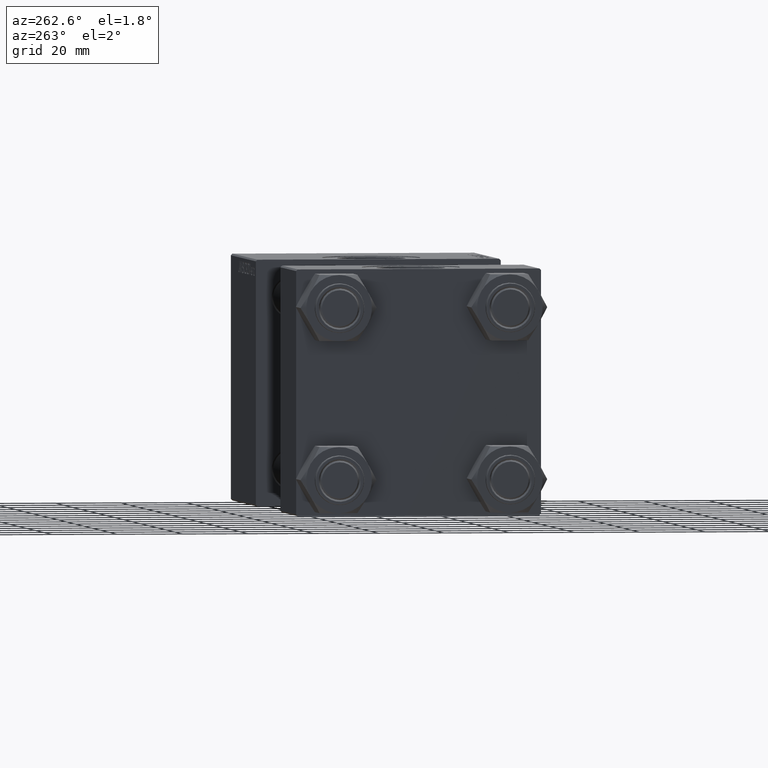
[diagram: clean part render]
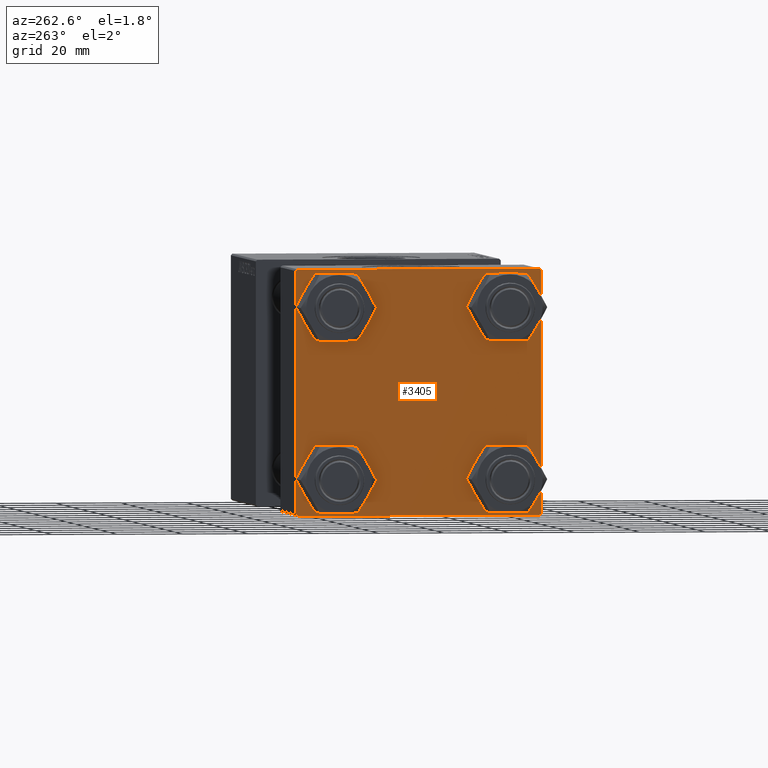
[diagram: same view with one face highlighted and labeled with its STEP entity id]
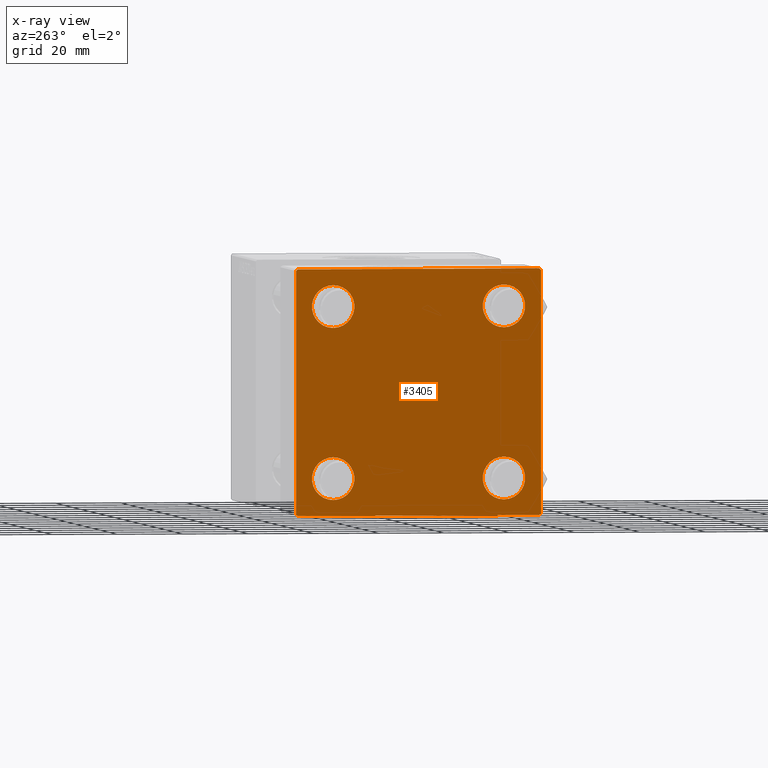
[diagram: x-ray of the same camera — body ghosted, the highlighted face saturated]
A machine part, auxiliary view. The second image highlights one B-rep face of the part: STEP entity #3405.
The next image is the same camera in x-ray: the body ghosted, the highlighted face saturated — about 0% of this face is hidden behind the body in this view.
In plain terms, the highlighted planar face has unit normal (-1, 0, 0).
Its self-contained STEP definition (entity closure, byte-faithful):
#1336 = DIRECTION ( 'NONE',  ( 1.000000000000000000, -0.000000000000000000, 0.000000000000000000 ) ) ;
#1498 = EDGE_CURVE ( 'NONE', #6994, #21652, #19226, .T. ) ;
#1611 = CARTESIAN_POINT ( 'NONE',  ( 0.000000000000000000, -26.14999999999999147, -19.64999999999999503 ) ) ;
#1628 = DIRECTION ( 'NONE',  ( 0.000000000000000000, 0.000000000000000000, 1.000000000000000000 ) ) ;
#1676 = EDGE_LOOP ( 'NONE', ( #9189, #27621, #28708, #37875, #35586, #8258, #18988, #46551 ) ) ;
#2150 = CARTESIAN_POINT ( 'NONE',  ( 0.000000000000000000, 26.14999999999999858, -19.64999999999998792 ) ) ;
#2452 = EDGE_CURVE ( 'NONE', #5278, #48854, #33222, .T. ) ;
#2529 = DIRECTION ( 'NONE',  ( -0.000000000000000000, -0.7071067811865474617, -0.7071067811865474617 ) ) ;
#2985 = DIRECTION ( 'NONE',  ( 1.000000000000000000, -0.000000000000000000, 0.000000000000000000 ) ) ;
#3405 = ADVANCED_FACE ( 'NONE', ( #15843, #27512, #31324, #34143, #46812 ), #12036, .T. ) ;
#3434 = EDGE_CURVE ( 'NONE', #34354, #5278, #36149, .T. ) ;
#4390 = EDGE_LOOP ( 'NONE', ( #50169, #31561 ) ) ;
#5188 = CARTESIAN_POINT ( 'NONE',  ( 0.000000000000000000, -26.14999999999999147, 26.15000000000000924 ) ) ;
#5278 = VERTEX_POINT ( 'NONE', #42972 ) ;
#5320 = CARTESIAN_POINT ( 'NONE',  ( 0.000000000000000000, -37.24999999999975842, -37.25000000000027001 ) ) ;
#5401 = DIRECTION ( 'NONE',  ( 0.000000000000000000, 0.000000000000000000, 1.000000000000000000 ) ) ;
#5886 = CARTESIAN_POINT ( 'NONE',  ( 0.000000000000000000, -26.14999999999999147, 26.15000000000000924 ) ) ;
#5907 = CARTESIAN_POINT ( 'NONE',  ( 0.000000000000000000, 26.14999999999999858, 26.15000000000000213 ) ) ;
#6994 = VERTEX_POINT ( 'NONE', #25187 ) ;
#7563 = CIRCLE ( 'NONE', #35920, 6.500000000000023093 ) ;
#8204 = LINE ( 'NONE', #38661, #37415 ) ;
#8258 = ORIENTED_EDGE ( 'NONE', *, *, #42289, .T. ) ;
#8360 = EDGE_CURVE ( 'NONE', #39861, #16592, #45405, .T. ) ;
#9189 = ORIENTED_EDGE ( 'NONE', *, *, #2452, .T. ) ;
#9366 = DIRECTION ( 'NONE',  ( 0.000000000000000000, -0.7071067811865524577, 0.7071067811865426878 ) ) ;
#9506 = EDGE_CURVE ( 'NONE', #10418, #44959, #48457, .T. ) ;
#10377 = LINE ( 'NONE', #37302, #33357 ) ;
#10418 = VERTEX_POINT ( 'NONE', #16299 ) ;
#10812 = CIRCLE ( 'NONE', #43246, 6.500000000000015987 ) ;
#11077 = ORIENTED_EDGE ( 'NONE', *, *, #48830, .T. ) ;
#11758 = DIRECTION ( 'NONE',  ( 0.000000000000000000, 9.251858538542971581E-17, -1.000000000000000000 ) ) ;
#12036 = PLANE ( 'NONE',  #23326 ) ;
#12166 = CIRCLE ( 'NONE', #20267, 6.500000000000023093 ) ;
#12179 = AXIS2_PLACEMENT_3D ( 'NONE', #45115, #17215, #21749 ) ;
#12268 = CARTESIAN_POINT ( 'NONE',  ( 0.000000000000000000, 36.99999999999999289, 37.50000000000000000 ) ) ;
#12790 = VECTOR ( 'NONE', #35643, 1000.000000000000114 ) ;
#13007 = DIRECTION ( 'NONE',  ( 0.000000000000000000, 0.000000000000000000, 1.000000000000000000 ) ) ;
#13312 = EDGE_CURVE ( 'NONE', #37747, #10418, #48753, .T. ) ;
#13495 = CARTESIAN_POINT ( 'NONE',  ( 0.000000000000000000, 37.49999999999999289, -36.99999999999998579 ) ) ;
#13710 = CARTESIAN_POINT ( 'NONE',  ( 0.000000000000000000, 37.49999999999999289, -37.50000000000000000 ) ) ;
#13804 = VECTOR ( 'NONE', #41629, 1000.000000000000000 ) ;
#15571 = EDGE_CURVE ( 'NONE', #25717, #36424, #38229, .T. ) ;
#15843 = FACE_BOUND ( 'NONE', #49305, .T. ) ;
#16299 = CARTESIAN_POINT ( 'NONE',  ( 0.000000000000000000, -37.00000000000002132, -37.50000000000000711 ) ) ;
#16554 = VERTEX_POINT ( 'NONE', #39772 ) ;
#16592 = VERTEX_POINT ( 'NONE', #28575 ) ;
#16643 = DIRECTION ( 'NONE',  ( 1.000000000000000000, -0.000000000000000000, 0.000000000000000000 ) ) ;
#16834 = DIRECTION ( 'NONE',  ( 1.000000000000000000, -0.000000000000000000, 0.000000000000000000 ) ) ;
#17215 = DIRECTION ( 'NONE',  ( 1.000000000000000000, -0.000000000000000000, 0.000000000000000000 ) ) ;
#17238 = CARTESIAN_POINT ( 'NONE',  ( 0.000000000000000000, 37.49999999999999289, 37.50000000000000000 ) ) ;
#17288 = EDGE_CURVE ( 'NONE', #16592, #39861, #10812, .T. ) ;
#17477 = CARTESIAN_POINT ( 'NONE',  ( 0.000000000000000000, 26.14999999999999858, -32.65000000000001990 ) ) ;
#18988 = ORIENTED_EDGE ( 'NONE', *, *, #31457, .F. ) ;
#19226 = CIRCLE ( 'NONE', #41924, 6.500000000000023093 ) ;
#19432 = CARTESIAN_POINT ( 'NONE',  ( 0.000000000000000000, -26.14999999999999147, -26.15000000000000924 ) ) ;
#20267 = AXIS2_PLACEMENT_3D ( 'NONE', #5188, #16834, #1628 ) ;
#21652 = VERTEX_POINT ( 'NONE', #44286 ) ;
#21749 = DIRECTION ( 'NONE',  ( 0.000000000000000000, 0.000000000000000000, 1.000000000000000000 ) ) ;
#21754 = CARTESIAN_POINT ( 'NONE',  ( 0.000000000000000000, 26.14999999999999858, -26.15000000000000213 ) ) ;
#21769 = CIRCLE ( 'NONE', #34776, 6.500000000000015987 ) ;
#22434 = DIRECTION ( 'NONE',  ( -1.000000000000000000, 0.000000000000000000, -0.000000000000000000 ) ) ;
#22880 = VERTEX_POINT ( 'NONE', #28626 ) ;
#23326 = AXIS2_PLACEMENT_3D ( 'NONE', #43016, #22434, #49629 ) ;
#25187 = CARTESIAN_POINT ( 'NONE',  ( 0.000000000000000000, 26.14999999999999858, 19.64999999999998437 ) ) ;
#25717 = VERTEX_POINT ( 'NONE', #17477 ) ;
#26632 = CARTESIAN_POINT ( 'NONE',  ( -0.000000000000000000, -37.25000000000000000, 37.25000000000000000 ) ) ;
#27512 = FACE_BOUND ( 'NONE', #37548, .T. ) ;
#27621 = ORIENTED_EDGE ( 'NONE', *, *, #38978, .T. ) ;
#28575 = CARTESIAN_POINT ( 'NONE',  ( 0.000000000000000000, -26.14999999999999147, -32.65000000000002700 ) ) ;
#28626 = CARTESIAN_POINT ( 'NONE',  ( 0.000000000000000000, -37.00000000000000711, 37.49999999999999289 ) ) ;
#28708 = ORIENTED_EDGE ( 'NONE', *, *, #13312, .T. ) ;
#29454 = DIRECTION ( 'NONE',  ( 0.000000000000000000, 0.000000000000000000, 1.000000000000000000 ) ) ;
#29500 = LINE ( 'NONE', #40449, #31503 ) ;
#31324 = FACE_BOUND ( 'NONE', #4390, .T. ) ;
#31457 = EDGE_CURVE ( 'NONE', #34354, #22880, #29500, .T. ) ;
#31503 = VECTOR ( 'NONE', #44987, 1000.000000000000000 ) ;
#31561 = ORIENTED_EDGE ( 'NONE', *, *, #15571, .T. ) ;
#31782 = EDGE_CURVE ( 'NONE', #36424, #25717, #21769, .T. ) ;
#31951 = CARTESIAN_POINT ( 'NONE',  ( 0.000000000000000000, -37.50000000000000000, -37.00000000000003553 ) ) ;
#32075 = CARTESIAN_POINT ( 'NONE',  ( 0.000000000000000000, 37.24999999999999289, 37.24999999999999289 ) ) ;
#32378 = CARTESIAN_POINT ( 'NONE',  ( 0.000000000000000000, 26.14999999999999858, -26.15000000000000213 ) ) ;
#33015 = DIRECTION ( 'NONE',  ( 0.000000000000000000, 0.000000000000000000, 1.000000000000000000 ) ) ;
#33017 = DIRECTION ( 'NONE',  ( 1.000000000000000000, -0.000000000000000000, 0.000000000000000000 ) ) ;
#33222 = LINE ( 'NONE', #17238, #40342 ) ;
#33275 = DIRECTION ( 'NONE',  ( 1.000000000000000000, -0.000000000000000000, 0.000000000000000000 ) ) ;
#33357 = VECTOR ( 'NONE', #2529, 1000.000000000000114 ) ;
#34143 = FACE_BOUND ( 'NONE', #38092, .T. ) ;
#34354 = VERTEX_POINT ( 'NONE', #12268 ) ;
#34776 = AXIS2_PLACEMENT_3D ( 'NONE', #21754, #2985, #40585 ) ;
#35296 = EDGE_CURVE ( 'NONE', #42187, #16554, #12166, .T. ) ;
#35586 = ORIENTED_EDGE ( 'NONE', *, *, #38579, .F. ) ;
#35643 = DIRECTION ( 'NONE',  ( 0.000000000000000000, 0.7071067811865474617, -0.7071067811865474617 ) ) ;
#35920 = AXIS2_PLACEMENT_3D ( 'NONE', #5886, #33017, #29454 ) ;
#36149 = LINE ( 'NONE', #32075, #12790 ) ;
#36424 = VERTEX_POINT ( 'NONE', #2150 ) ;
#36544 = DIRECTION ( 'NONE',  ( 0.000000000000000000, 0.000000000000000000, -1.000000000000000000 ) ) ;
#37302 = CARTESIAN_POINT ( 'NONE',  ( 0.000000000000000000, 37.24999999999998579, -37.24999999999998579 ) ) ;
#37415 = VECTOR ( 'NONE', #11758, 1000.000000000000000 ) ;
#37548 = EDGE_LOOP ( 'NONE', ( #48823, #46648 ) ) ;
#37747 = VERTEX_POINT ( 'NONE', #42445 ) ;
#37875 = ORIENTED_EDGE ( 'NONE', *, *, #9506, .T. ) ;
#38037 = ORIENTED_EDGE ( 'NONE', *, *, #1498, .T. ) ;
#38092 = EDGE_LOOP ( 'NONE', ( #11077, #38037 ) ) ;
#38229 = CIRCLE ( 'NONE', #43891, 6.500000000000015987 ) ;
#38579 = EDGE_CURVE ( 'NONE', #46555, #44959, #8204, .T. ) ;
#38661 = CARTESIAN_POINT ( 'NONE',  ( 0.000000000000000000, -37.50000000000000711, 37.49999999999999289 ) ) ;
#38978 = EDGE_CURVE ( 'NONE', #48854, #37747, #10377, .T. ) ;
#39542 = ORIENTED_EDGE ( 'NONE', *, *, #35296, .T. ) ;
#39772 = CARTESIAN_POINT ( 'NONE',  ( 0.000000000000000000, -26.14999999999999147, 19.64999999999999147 ) ) ;
#39861 = VERTEX_POINT ( 'NONE', #1611 ) ;
#39928 = DIRECTION ( 'NONE',  ( 1.000000000000000000, -0.000000000000000000, 0.000000000000000000 ) ) ;
#40342 = VECTOR ( 'NONE', #36544, 1000.000000000000000 ) ;
#40403 = CARTESIAN_POINT ( 'NONE',  ( 0.000000000000000000, 26.14999999999999858, 26.15000000000000213 ) ) ;
#40449 = CARTESIAN_POINT ( 'NONE',  ( 0.000000000000000000, 37.49999999999999289, 37.50000000000000000 ) ) ;
#40585 = DIRECTION ( 'NONE',  ( 0.000000000000000000, 0.000000000000000000, 1.000000000000000000 ) ) ;
#40890 = CARTESIAN_POINT ( 'NONE',  ( 0.000000000000000000, -26.14999999999999147, 32.65000000000003411 ) ) ;
#41612 = ORIENTED_EDGE ( 'NONE', *, *, #46950, .T. ) ;
#41629 = DIRECTION ( 'NONE',  ( 0.000000000000000000, -1.000000000000000000, -9.251858538542972814E-17 ) ) ;
#41924 = AXIS2_PLACEMENT_3D ( 'NONE', #40403, #33275, #33015 ) ;
#42142 = DIRECTION ( 'NONE',  ( -0.000000000000000000, 0.7071067811865474617, 0.7071067811865474617 ) ) ;
#42187 = VERTEX_POINT ( 'NONE', #40890 ) ;
#42289 = EDGE_CURVE ( 'NONE', #46555, #22880, #49988, .T. ) ;
#42445 = CARTESIAN_POINT ( 'NONE',  ( 0.000000000000000000, 36.99999999999997868, -37.50000000000000000 ) ) ;
#42972 = CARTESIAN_POINT ( 'NONE',  ( 0.000000000000000000, 37.49999999999999289, 37.00000000000000000 ) ) ;
#43016 = CARTESIAN_POINT ( 'NONE',  ( 0.000000000000000000, 0.000000000000000000, 0.000000000000000000 ) ) ;
#43246 = AXIS2_PLACEMENT_3D ( 'NONE', #19432, #1336, #13007 ) ;
#43891 = AXIS2_PLACEMENT_3D ( 'NONE', #32378, #16643, #47618 ) ;
#44286 = CARTESIAN_POINT ( 'NONE',  ( 0.000000000000000000, 26.14999999999999858, 32.65000000000002700 ) ) ;
#44959 = VERTEX_POINT ( 'NONE', #31951 ) ;
#44987 = DIRECTION ( 'NONE',  ( 0.000000000000000000, -1.000000000000000000, -9.251858538542971581E-17 ) ) ;
#45115 = CARTESIAN_POINT ( 'NONE',  ( 0.000000000000000000, -26.14999999999999147, -26.15000000000000924 ) ) ;
#45174 = AXIS2_PLACEMENT_3D ( 'NONE', #5907, #39928, #5401 ) ;
#45405 = CIRCLE ( 'NONE', #12179, 6.500000000000015987 ) ;
#46008 = CIRCLE ( 'NONE', #45174, 6.500000000000023093 ) ;
#46551 = ORIENTED_EDGE ( 'NONE', *, *, #3434, .T. ) ;
#46555 = VERTEX_POINT ( 'NONE', #46581 ) ;
#46581 = CARTESIAN_POINT ( 'NONE',  ( 0.000000000000000000, -37.50000000000000711, 36.99999999999999289 ) ) ;
#46648 = ORIENTED_EDGE ( 'NONE', *, *, #17288, .T. ) ;
#46812 = FACE_OUTER_BOUND ( 'NONE', #1676, .T. ) ;
#46950 = EDGE_CURVE ( 'NONE', #16554, #42187, #7563, .T. ) ;
#47618 = DIRECTION ( 'NONE',  ( 0.000000000000000000, 0.000000000000000000, 1.000000000000000000 ) ) ;
#48457 = LINE ( 'NONE', #5320, #50188 ) ;
#48753 = LINE ( 'NONE', #13710, #13804 ) ;
#48823 = ORIENTED_EDGE ( 'NONE', *, *, #8360, .T. ) ;
#48830 = EDGE_CURVE ( 'NONE', #21652, #6994, #46008, .T. ) ;
#48854 = VERTEX_POINT ( 'NONE', #13495 ) ;
#48873 = VECTOR ( 'NONE', #42142, 1000.000000000000114 ) ;
#49305 = EDGE_LOOP ( 'NONE', ( #39542, #41612 ) ) ;
#49629 = DIRECTION ( 'NONE',  ( -0.000000000000000000, 0.000000000000000000, 1.000000000000000000 ) ) ;
#49988 = LINE ( 'NONE', #26632, #48873 ) ;
#50169 = ORIENTED_EDGE ( 'NONE', *, *, #31782, .T. ) ;
#50188 = VECTOR ( 'NONE', #9366, 1000.000000000000000 ) ;